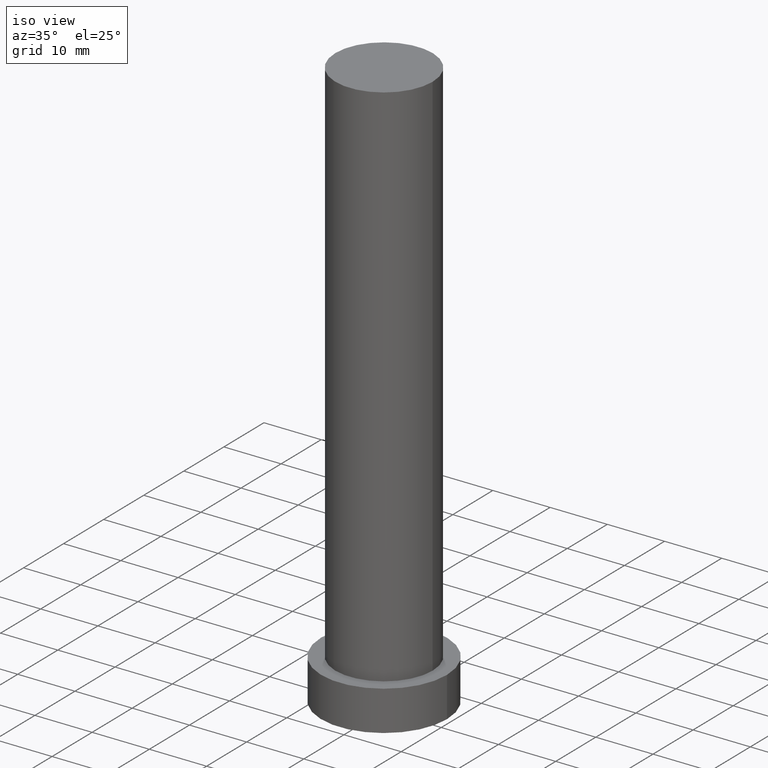
[diagram: clean part render]
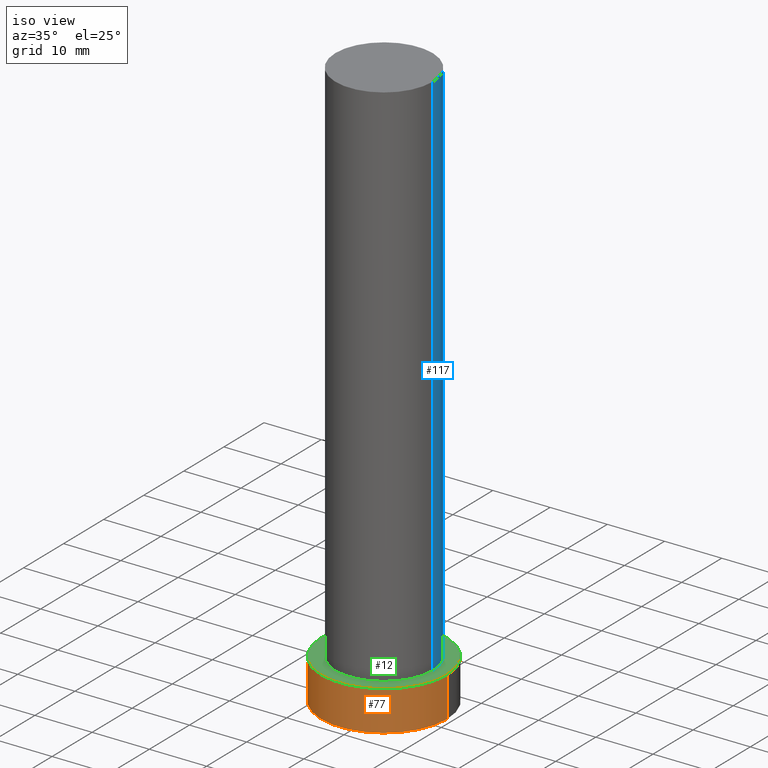
[diagram: same view with three faces highlighted in distinct colors, each labeled with its STEP entity id]
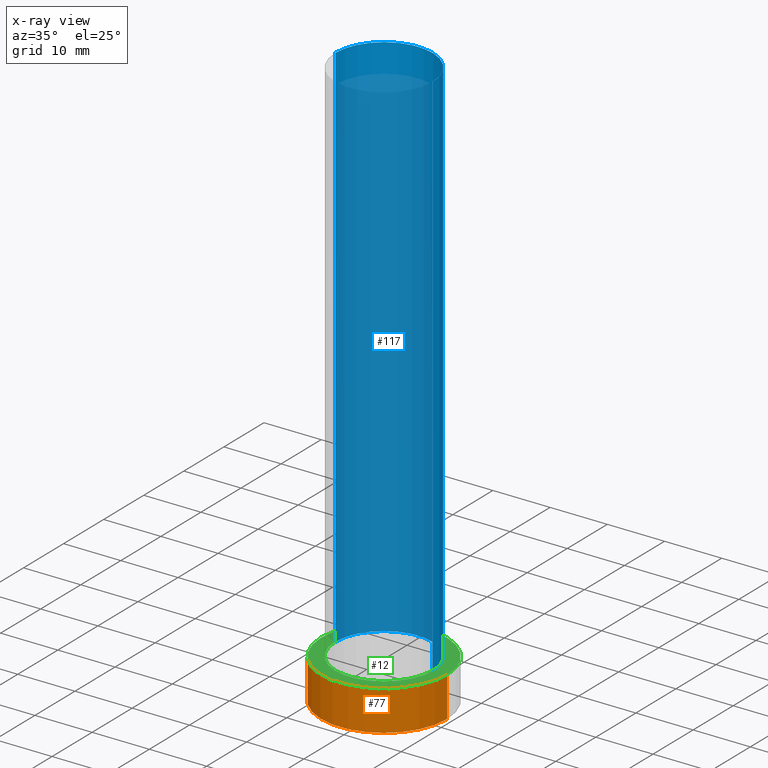
[diagram: x-ray of the same camera — body ghosted, the three highlighted faces saturated]
A machine part, iso view with three faces highlighted in distinct colors.
The next image is the same camera in x-ray (body ghosted, the three faces saturated) — at least one of them is partly hidden behind the body in this view.
Their STEP definitions:

[orange] entity #77 — the highlighted cylindrical surface (partial cylindrical patch) has radius 11 mm, axis along (-0, -0, -1).
#2 = VERTEX_POINT ( 'NONE', #150 ) ;
#5 = EDGE_CURVE ( 'NONE', #6, #231, #13, .T. ) ;
#6 = VERTEX_POINT ( 'NONE', #211 ) ;
#8 = CARTESIAN_POINT ( 'NONE',  ( 0.000000000000000000, 0.000000000000000000, 7.000000000000000000 ) ) ;
#13 = CIRCLE ( 'NONE', #138, 11.00000000000000000 ) ;
#26 = DIRECTION ( 'NONE',  ( 1.000000000000000000, 0.000000000000000000, 0.000000000000000000 ) ) ;
#27 = EDGE_CURVE ( 'NONE', #231, #2, #243, .T. ) ;
#46 = DIRECTION ( 'NONE',  ( 1.000000000000000000, 0.000000000000000000, 0.000000000000000000 ) ) ;
#48 = ORIENTED_EDGE ( 'NONE', *, *, #82, .T. ) ;
#50 = DIRECTION ( 'NONE',  ( -1.000000000000000000, 0.000000000000000000, 0.000000000000000000 ) ) ;
#51 = CARTESIAN_POINT ( 'NONE',  ( 0.000000000000000000, 0.000000000000000000, 7.000000000000000000 ) ) ;
#53 = EDGE_CURVE ( 'NONE', #6, #128, #235, .T. ) ;
#67 = EDGE_LOOP ( 'NONE', ( #147, #87, #206, #48 ) ) ;
#68 = DIRECTION ( 'NONE',  ( -0.000000000000000000, -0.000000000000000000, -1.000000000000000000 ) ) ;
#70 = AXIS2_PLACEMENT_3D ( 'NONE', #225, #245, #46 ) ;
#77 = ADVANCED_FACE ( 'NONE', ( #170 ), #146, .T. ) ;
#82 = EDGE_CURVE ( 'NONE', #128, #2, #222, .T. ) ;
#86 = AXIS2_PLACEMENT_3D ( 'NONE', #8, #68, #50 ) ;
#87 = ORIENTED_EDGE ( 'NONE', *, *, #5, .F. ) ;
#96 = CARTESIAN_POINT ( 'NONE',  ( 11.00000000000000000, 1.347111479062088405E-15, 7.000000000000000000 ) ) ;
#106 = CARTESIAN_POINT ( 'NONE',  ( -11.00000000000000000, 0.000000000000000000, 0.000000000000000000 ) ) ;
#120 = DIRECTION ( 'NONE',  ( -0.000000000000000000, -0.000000000000000000, -1.000000000000000000 ) ) ;
#128 = VERTEX_POINT ( 'NONE', #106 ) ;
#133 = DIRECTION ( 'NONE',  ( 0.000000000000000000, 0.000000000000000000, 1.000000000000000000 ) ) ;
#135 = CARTESIAN_POINT ( 'NONE',  ( -11.00000000000000000, 0.000000000000000000, 7.000000000000000000 ) ) ;
#138 = AXIS2_PLACEMENT_3D ( 'NONE', #51, #133, #26 ) ;
#145 = CARTESIAN_POINT ( 'NONE',  ( 11.00000000000000000, 1.347111479062088405E-15, 7.000000000000000000 ) ) ;
#146 = CYLINDRICAL_SURFACE ( 'NONE', #86, 11.00000000000000000 ) ;
#147 = ORIENTED_EDGE ( 'NONE', *, *, #27, .F. ) ;
#148 = VECTOR ( 'NONE', #176, 1000.000000000000000 ) ;
#150 = CARTESIAN_POINT ( 'NONE',  ( 11.00000000000000000, 1.347111479062088405E-15, 0.000000000000000000 ) ) ;
#165 = VECTOR ( 'NONE', #120, 1000.000000000000000 ) ;
#170 = FACE_OUTER_BOUND ( 'NONE', #67, .T. ) ;
#176 = DIRECTION ( 'NONE',  ( -0.000000000000000000, -0.000000000000000000, -1.000000000000000000 ) ) ;
#206 = ORIENTED_EDGE ( 'NONE', *, *, #53, .T. ) ;
#211 = CARTESIAN_POINT ( 'NONE',  ( -11.00000000000000000, 0.000000000000000000, 7.000000000000000000 ) ) ;
#222 = CIRCLE ( 'NONE', #70, 11.00000000000000000 ) ;
#225 = CARTESIAN_POINT ( 'NONE',  ( 0.000000000000000000, 0.000000000000000000, 0.000000000000000000 ) ) ;
#231 = VERTEX_POINT ( 'NONE', #96 ) ;
#235 = LINE ( 'NONE', #135, #148 ) ;
#243 = LINE ( 'NONE', #145, #165 ) ;
#245 = DIRECTION ( 'NONE',  ( 0.000000000000000000, 0.000000000000000000, 1.000000000000000000 ) ) ;

[blue] entity #117 — the highlighted cylindrical surface (partial cylindrical patch) has radius 8.5 mm, axis along (-0, -0, -1).
#4 = CARTESIAN_POINT ( 'NONE',  ( 0.000000000000000000, 0.000000000000000000, 100.0000000000000000 ) ) ;
#9 = DIRECTION ( 'NONE',  ( -1.000000000000000000, 0.000000000000000000, 0.000000000000000000 ) ) ;
#35 = DIRECTION ( 'NONE',  ( -0.000000000000000000, -0.000000000000000000, -1.000000000000000000 ) ) ;
#37 = AXIS2_PLACEMENT_3D ( 'NONE', #230, #168, #9 ) ;
#44 = ORIENTED_EDGE ( 'NONE', *, *, #45, .T. ) ;
#45 = EDGE_CURVE ( 'NONE', #181, #132, #252, .T. ) ;
#52 = CARTESIAN_POINT ( 'NONE',  ( -8.500000000000000000, 0.000000000000000000, 100.0000000000000000 ) ) ;
#62 = DIRECTION ( 'NONE',  ( 1.000000000000000000, 0.000000000000000000, 0.000000000000000000 ) ) ;
#79 = CARTESIAN_POINT ( 'NONE',  ( 8.500000000000000000, 1.040949779275249943E-15, 100.0000000000000000 ) ) ;
#85 = EDGE_LOOP ( 'NONE', ( #171, #44, #249, #226 ) ) ;
#91 = AXIS2_PLACEMENT_3D ( 'NONE', #4, #204, #62 ) ;
#99 = CIRCLE ( 'NONE', #116, 8.500000000000000000 ) ;
#112 = FACE_OUTER_BOUND ( 'NONE', #85, .T. ) ;
#115 = EDGE_CURVE ( 'NONE', #132, #241, #99, .T. ) ;
#116 = AXIS2_PLACEMENT_3D ( 'NONE', #223, #162, #149 ) ;
#117 = ADVANCED_FACE ( 'NONE', ( #112 ), #247, .T. ) ;
#124 = CIRCLE ( 'NONE', #91, 8.500000000000000000 ) ;
#130 = VECTOR ( 'NONE', #196, 1000.000000000000000 ) ;
#132 = VERTEX_POINT ( 'NONE', #185 ) ;
#149 = DIRECTION ( 'NONE',  ( 1.000000000000000000, 0.000000000000000000, 0.000000000000000000 ) ) ;
#151 = EDGE_CURVE ( 'NONE', #181, #205, #124, .T. ) ;
#162 = DIRECTION ( 'NONE',  ( 0.000000000000000000, 0.000000000000000000, 1.000000000000000000 ) ) ;
#168 = DIRECTION ( 'NONE',  ( -0.000000000000000000, -0.000000000000000000, -1.000000000000000000 ) ) ;
#171 = ORIENTED_EDGE ( 'NONE', *, *, #151, .F. ) ;
#181 = VERTEX_POINT ( 'NONE', #79 ) ;
#185 = CARTESIAN_POINT ( 'NONE',  ( 8.500000000000000000, 1.040949779275249943E-15, 7.000000000000000000 ) ) ;
#196 = DIRECTION ( 'NONE',  ( -0.000000000000000000, -0.000000000000000000, -1.000000000000000000 ) ) ;
#200 = EDGE_CURVE ( 'NONE', #205, #241, #215, .T. ) ;
#204 = DIRECTION ( 'NONE',  ( 0.000000000000000000, 0.000000000000000000, 1.000000000000000000 ) ) ;
#205 = VERTEX_POINT ( 'NONE', #52 ) ;
#215 = LINE ( 'NONE', #254, #228 ) ;
#223 = CARTESIAN_POINT ( 'NONE',  ( 0.000000000000000000, 0.000000000000000000, 7.000000000000000000 ) ) ;
#226 = ORIENTED_EDGE ( 'NONE', *, *, #200, .F. ) ;
#228 = VECTOR ( 'NONE', #35, 1000.000000000000000 ) ;
#230 = CARTESIAN_POINT ( 'NONE',  ( 0.000000000000000000, 0.000000000000000000, 100.0000000000000000 ) ) ;
#232 = CARTESIAN_POINT ( 'NONE',  ( 8.500000000000000000, 1.040949779275249943E-15, 100.0000000000000000 ) ) ;
#236 = CARTESIAN_POINT ( 'NONE',  ( -8.500000000000000000, 0.000000000000000000, 7.000000000000000000 ) ) ;
#241 = VERTEX_POINT ( 'NONE', #236 ) ;
#247 = CYLINDRICAL_SURFACE ( 'NONE', #37, 8.500000000000000000 ) ;
#249 = ORIENTED_EDGE ( 'NONE', *, *, #115, .T. ) ;
#252 = LINE ( 'NONE', #232, #130 ) ;
#254 = CARTESIAN_POINT ( 'NONE',  ( -8.500000000000000000, 0.000000000000000000, 100.0000000000000000 ) ) ;

[green] entity #12 — the highlighted planar face has unit normal (0, 0, 1).
#5 = EDGE_CURVE ( 'NONE', #6, #231, #13, .T. ) ;
#6 = VERTEX_POINT ( 'NONE', #211 ) ;
#11 = ORIENTED_EDGE ( 'NONE', *, *, #123, .T. ) ;
#12 = ADVANCED_FACE ( 'NONE', ( #31, #114 ), #15, .T. ) ;
#13 = CIRCLE ( 'NONE', #138, 11.00000000000000000 ) ;
#15 = PLANE ( 'NONE',  #183 ) ;
#20 = CIRCLE ( 'NONE', #78, 11.00000000000000000 ) ;
#24 = DIRECTION ( 'NONE',  ( 1.000000000000000000, 0.000000000000000000, 0.000000000000000000 ) ) ;
#25 = CARTESIAN_POINT ( 'NONE',  ( 0.000000000000000000, 0.000000000000000000, 7.000000000000000000 ) ) ;
#26 = DIRECTION ( 'NONE',  ( 1.000000000000000000, 0.000000000000000000, 0.000000000000000000 ) ) ;
#31 = FACE_BOUND ( 'NONE', #89, .T. ) ;
#51 = CARTESIAN_POINT ( 'NONE',  ( 0.000000000000000000, 0.000000000000000000, 7.000000000000000000 ) ) ;
#65 = CARTESIAN_POINT ( 'NONE',  ( 0.000000000000000000, 0.000000000000000000, 7.000000000000000000 ) ) ;
#73 = EDGE_LOOP ( 'NONE', ( #229, #11 ) ) ;
#78 = AXIS2_PLACEMENT_3D ( 'NONE', #88, #203, #24 ) ;
#88 = CARTESIAN_POINT ( 'NONE',  ( 0.000000000000000000, 0.000000000000000000, 7.000000000000000000 ) ) ;
#89 = EDGE_LOOP ( 'NONE', ( #111, #210 ) ) ;
#96 = CARTESIAN_POINT ( 'NONE',  ( 11.00000000000000000, 1.347111479062088405E-15, 7.000000000000000000 ) ) ;
#99 = CIRCLE ( 'NONE', #116, 8.500000000000000000 ) ;
#107 = DIRECTION ( 'NONE',  ( 1.000000000000000000, 0.000000000000000000, 0.000000000000000000 ) ) ;
#108 = DIRECTION ( 'NONE',  ( 1.000000000000000000, 0.000000000000000000, -0.000000000000000000 ) ) ;
#111 = ORIENTED_EDGE ( 'NONE', *, *, #159, .F. ) ;
#114 = FACE_OUTER_BOUND ( 'NONE', #73, .T. ) ;
#115 = EDGE_CURVE ( 'NONE', #132, #241, #99, .T. ) ;
#116 = AXIS2_PLACEMENT_3D ( 'NONE', #223, #162, #149 ) ;
#121 = AXIS2_PLACEMENT_3D ( 'NONE', #25, #126, #107 ) ;
#123 = EDGE_CURVE ( 'NONE', #231, #6, #20, .T. ) ;
#126 = DIRECTION ( 'NONE',  ( 0.000000000000000000, 0.000000000000000000, 1.000000000000000000 ) ) ;
#127 = DIRECTION ( 'NONE',  ( 0.000000000000000000, 0.000000000000000000, 1.000000000000000000 ) ) ;
#132 = VERTEX_POINT ( 'NONE', #185 ) ;
#133 = DIRECTION ( 'NONE',  ( 0.000000000000000000, 0.000000000000000000, 1.000000000000000000 ) ) ;
#138 = AXIS2_PLACEMENT_3D ( 'NONE', #51, #133, #26 ) ;
#149 = DIRECTION ( 'NONE',  ( 1.000000000000000000, 0.000000000000000000, 0.000000000000000000 ) ) ;
#159 = EDGE_CURVE ( 'NONE', #241, #132, #166, .T. ) ;
#162 = DIRECTION ( 'NONE',  ( 0.000000000000000000, 0.000000000000000000, 1.000000000000000000 ) ) ;
#166 = CIRCLE ( 'NONE', #121, 8.500000000000000000 ) ;
#183 = AXIS2_PLACEMENT_3D ( 'NONE', #65, #127, #108 ) ;
#185 = CARTESIAN_POINT ( 'NONE',  ( 8.500000000000000000, 1.040949779275249943E-15, 7.000000000000000000 ) ) ;
#203 = DIRECTION ( 'NONE',  ( 0.000000000000000000, 0.000000000000000000, 1.000000000000000000 ) ) ;
#210 = ORIENTED_EDGE ( 'NONE', *, *, #115, .F. ) ;
#211 = CARTESIAN_POINT ( 'NONE',  ( -11.00000000000000000, 0.000000000000000000, 7.000000000000000000 ) ) ;
#223 = CARTESIAN_POINT ( 'NONE',  ( 0.000000000000000000, 0.000000000000000000, 7.000000000000000000 ) ) ;
#229 = ORIENTED_EDGE ( 'NONE', *, *, #5, .T. ) ;
#231 = VERTEX_POINT ( 'NONE', #96 ) ;
#236 = CARTESIAN_POINT ( 'NONE',  ( -8.500000000000000000, 0.000000000000000000, 7.000000000000000000 ) ) ;
#241 = VERTEX_POINT ( 'NONE', #236 ) ;